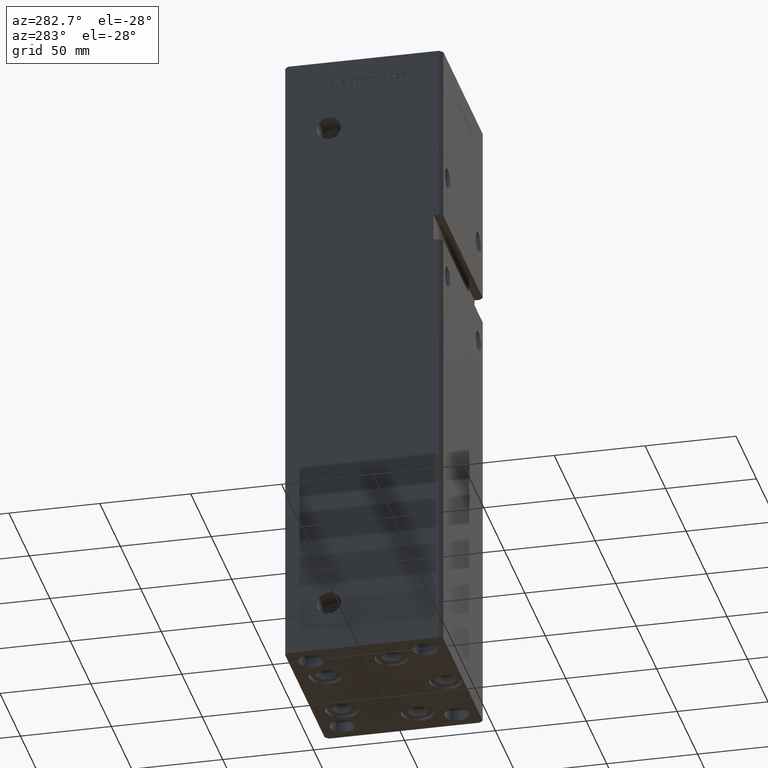
[diagram: clean part render]
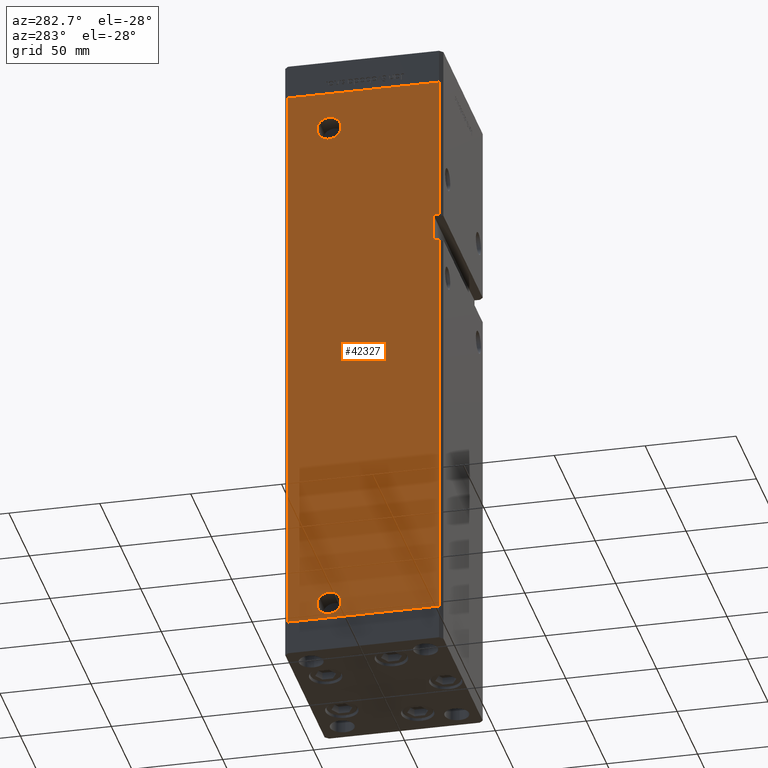
[diagram: same view with one face highlighted and labeled with its STEP entity id]
A machine part, auxiliary view. The second image highlights one B-rep face of the part: STEP entity #42327.
In plain terms, the highlighted planar face has unit normal (1, 0, 0).
Its self-contained STEP definition (entity closure, byte-faithful):
#18 = CIRCLE ( 'NONE', #27510, 6.580000000000002736 ) ;
#694 = EDGE_CURVE ( 'NONE', #40831, #34940, #27247, .T. ) ;
#1255 = CARTESIAN_POINT ( 'NONE',  ( -50.00000000000001421, 41.49999999999999289, 318.5000000000000000 ) ) ;
#2307 = EDGE_CURVE ( 'NONE', #35703, #48723, #43948, .T. ) ;
#2491 = CARTESIAN_POINT ( 'NONE',  ( -50.00000000000001421, 41.49999999999999289, 0.000000000000000000 ) ) ;
#3138 = EDGE_LOOP ( 'NONE', ( #28983, #45675 ) ) ;
#3141 = CARTESIAN_POINT ( 'NONE',  ( -50.00000000000001421, 41.49999999999999289, 318.5000000000000000 ) ) ;
#3309 = LINE ( 'NONE', #43883, #43074 ) ;
#3912 = VERTEX_POINT ( 'NONE', #1255 ) ;
#3988 = CARTESIAN_POINT ( 'NONE',  ( -49.99999999999998579, -38.50000000000000000, 223.0000000000000000 ) ) ;
#5367 = VERTEX_POINT ( 'NONE', #50105 ) ;
#6446 = DIRECTION ( 'NONE',  ( 1.000000000000000000, 3.344045254895050480E-16, -0.000000000000000000 ) ) ;
#6553 = DIRECTION ( 'NONE',  ( 0.000000000000000000, -1.000000000000000000, 0.000000000000000000 ) ) ;
#6886 = CARTESIAN_POINT ( 'NONE',  ( -49.99999999999998579, -41.49999999999999289, 318.5000000000000000 ) ) ;
#7918 = DIRECTION ( 'NONE',  ( -1.000000000000000000, -2.275047181608927644E-16, 0.000000000000000000 ) ) ;
#7943 = EDGE_CURVE ( 'NONE', #14810, #8219, #49701, .T. ) ;
#8200 = VECTOR ( 'NONE', #10691, 1000.000000000000000 ) ;
#8219 = VERTEX_POINT ( 'NONE', #16146 ) ;
#9601 = VECTOR ( 'NONE', #51942, 1000.000000000000000 ) ;
#10480 = CARTESIAN_POINT ( 'NONE',  ( -49.99999999999998579, -41.49999999999999289, 318.5000000000000000 ) ) ;
#10691 = DIRECTION ( 'NONE',  ( 3.344045254895050973E-16, -1.000000000000000000, 0.000000000000000000 ) ) ;
#11487 = DIRECTION ( 'NONE',  ( -1.000000000000000000, -2.275047181608927644E-16, 0.000000000000000000 ) ) ;
#13447 = ORIENTED_EDGE ( 'NONE', *, *, #47080, .F. ) ;
#13546 = EDGE_CURVE ( 'NONE', #8219, #14810, #30001, .T. ) ;
#14090 = VERTEX_POINT ( 'NONE', #49833 ) ;
#14388 = CARTESIAN_POINT ( 'NONE',  ( -49.99999999999998579, -41.49999999999999289, 223.0000000000000000 ) ) ;
#14742 = CARTESIAN_POINT ( 'NONE',  ( -50.00000000000001421, 41.49999999999999289, 318.5000000000000000 ) ) ;
#14810 = VERTEX_POINT ( 'NONE', #17999 ) ;
#15884 = EDGE_CURVE ( 'NONE', #35703, #34940, #3309, .T. ) ;
#16146 = CARTESIAN_POINT ( 'NONE',  ( -50.00000000000000711, 25.58000000000004448, 297.5000000000000000 ) ) ;
#16946 = ORIENTED_EDGE ( 'NONE', *, *, #48672, .F. ) ;
#17159 = ORIENTED_EDGE ( 'NONE', *, *, #45428, .T. ) ;
#17254 = ORIENTED_EDGE ( 'NONE', *, *, #33211, .F. ) ;
#17999 = CARTESIAN_POINT ( 'NONE',  ( -50.00000000000000711, 12.41999999999995552, 297.5000000000000000 ) ) ;
#18031 = CARTESIAN_POINT ( 'NONE',  ( -49.99999999999998579, -38.50000000000000000, 223.0000000000000000 ) ) ;
#18538 = AXIS2_PLACEMENT_3D ( 'NONE', #48221, #7918, #32657 ) ;
#19612 = LINE ( 'NONE', #3988, #41807 ) ;
#19785 = ORIENTED_EDGE ( 'NONE', *, *, #24738, .F. ) ;
#20076 = LINE ( 'NONE', #3141, #46422 ) ;
#20959 = CARTESIAN_POINT ( 'NONE',  ( -50.00000000000001421, 41.49999999999999289, 0.000000000000000000 ) ) ;
#21014 = DIRECTION ( 'NONE',  ( -1.000000000000000000, -2.275047181608927644E-16, 0.000000000000000000 ) ) ;
#21460 = AXIS2_PLACEMENT_3D ( 'NONE', #21827, #11487, #31394 ) ;
#21827 = CARTESIAN_POINT ( 'NONE',  ( -50.00000000000000711, 19.00000000000000000, 297.5000000000000000 ) ) ;
#22329 = FACE_BOUND ( 'NONE', #29134, .T. ) ;
#23221 = AXIS2_PLACEMENT_3D ( 'NONE', #23909, #6446, #43250 ) ;
#23230 = DIRECTION ( 'NONE',  ( -1.000000000000000000, -2.275047181608927644E-16, 0.000000000000000000 ) ) ;
#23490 = DIRECTION ( 'NONE',  ( -0.000000000000000000, -1.000000000000000000, -0.000000000000000000 ) ) ;
#23753 = CARTESIAN_POINT ( 'NONE',  ( -50.00000000000000711, 19.00000000000000000, 297.5000000000000000 ) ) ;
#23909 = CARTESIAN_POINT ( 'NONE',  ( -50.00000000000001421, 41.49999999999999289, 318.5000000000000000 ) ) ;
#24738 = EDGE_CURVE ( 'NONE', #3912, #40831, #48011, .T. ) ;
#25143 = EDGE_CURVE ( 'NONE', #14090, #5367, #27964, .T. ) ;
#25313 = DIRECTION ( 'NONE',  ( 0.000000000000000000, -1.000000000000000000, 0.000000000000000000 ) ) ;
#26239 = EDGE_LOOP ( 'NONE', ( #16946, #17254, #27025, #37117, #45465, #19785, #26708, #17159 ) ) ;
#26360 = FACE_OUTER_BOUND ( 'NONE', #26239, .T. ) ;
#26708 = ORIENTED_EDGE ( 'NONE', *, *, #44731, .T. ) ;
#27025 = ORIENTED_EDGE ( 'NONE', *, *, #2307, .F. ) ;
#27247 = LINE ( 'NONE', #43610, #9601 ) ;
#27510 = AXIS2_PLACEMENT_3D ( 'NONE', #36062, #21014, #25313 ) ;
#27964 = CIRCLE ( 'NONE', #18538, 6.580000000000002736 ) ;
#28640 = DIRECTION ( 'NONE',  ( 0.000000000000000000, 0.000000000000000000, -1.000000000000000000 ) ) ;
#28983 = ORIENTED_EDGE ( 'NONE', *, *, #7943, .F. ) ;
#29134 = EDGE_LOOP ( 'NONE', ( #32220, #13447 ) ) ;
#29262 = VECTOR ( 'NONE', #50521, 1000.000000000000000 ) ;
#30001 = CIRCLE ( 'NONE', #21460, 6.580000000000044480 ) ;
#31394 = DIRECTION ( 'NONE',  ( 0.000000000000000000, -1.000000000000000000, 0.000000000000000000 ) ) ;
#32220 = ORIENTED_EDGE ( 'NONE', *, *, #25143, .F. ) ;
#32657 = DIRECTION ( 'NONE',  ( 0.000000000000000000, -1.000000000000000000, 0.000000000000000000 ) ) ;
#32779 = LINE ( 'NONE', #20959, #38614 ) ;
#32964 = DIRECTION ( 'NONE',  ( -0.000000000000000000, -0.000000000000000000, -1.000000000000000000 ) ) ;
#33211 = EDGE_CURVE ( 'NONE', #48723, #47531, #19612, .T. ) ;
#34266 = AXIS2_PLACEMENT_3D ( 'NONE', #23753, #23230, #6553 ) ;
#34325 = CARTESIAN_POINT ( 'NONE',  ( -49.99999999999998579, -41.49999999999999289, 238.0000000000000284 ) ) ;
#34418 = LINE ( 'NONE', #10480, #29262 ) ;
#34940 = VERTEX_POINT ( 'NONE', #34325 ) ;
#35703 = VERTEX_POINT ( 'NONE', #50706 ) ;
#36062 = CARTESIAN_POINT ( 'NONE',  ( -50.00000000000000711, 19.00000000000000000, 9.000000000000007105 ) ) ;
#36169 = CARTESIAN_POINT ( 'NONE',  ( -49.99999999999998579, -38.50000000000000000, 238.0000000000000284 ) ) ;
#37117 = ORIENTED_EDGE ( 'NONE', *, *, #15884, .T. ) ;
#38614 = VECTOR ( 'NONE', #49674, 1000.000000000000000 ) ;
#38701 = FACE_BOUND ( 'NONE', #3138, .T. ) ;
#40078 = VECTOR ( 'NONE', #28640, 1000.000000000000000 ) ;
#40831 = VERTEX_POINT ( 'NONE', #6886 ) ;
#41807 = VECTOR ( 'NONE', #52374, 1000.000000000000000 ) ;
#42327 = ADVANCED_FACE ( 'NONE', ( #26360, #22329, #38701 ), #46995, .F. ) ;
#43074 = VECTOR ( 'NONE', #23490, 1000.000000000000000 ) ;
#43250 = DIRECTION ( 'NONE',  ( -3.344045254895050480E-16, 1.000000000000000000, 0.000000000000000000 ) ) ;
#43610 = CARTESIAN_POINT ( 'NONE',  ( -49.99999999999998579, -41.49999999999999289, 318.5000000000000000 ) ) ;
#43883 = CARTESIAN_POINT ( 'NONE',  ( -49.99999999999998579, -38.50000000000000000, 238.0000000000000284 ) ) ;
#43948 = LINE ( 'NONE', #36169, #40078 ) ;
#44731 = EDGE_CURVE ( 'NONE', #3912, #47787, #20076, .T. ) ;
#44837 = VERTEX_POINT ( 'NONE', #50398 ) ;
#45428 = EDGE_CURVE ( 'NONE', #47787, #44837, #32779, .T. ) ;
#45465 = ORIENTED_EDGE ( 'NONE', *, *, #694, .F. ) ;
#45675 = ORIENTED_EDGE ( 'NONE', *, *, #13546, .F. ) ;
#46422 = VECTOR ( 'NONE', #32964, 1000.000000000000000 ) ;
#46995 = PLANE ( 'NONE',  #23221 ) ;
#47080 = EDGE_CURVE ( 'NONE', #5367, #14090, #18, .T. ) ;
#47531 = VERTEX_POINT ( 'NONE', #14388 ) ;
#47787 = VERTEX_POINT ( 'NONE', #2491 ) ;
#48011 = LINE ( 'NONE', #14742, #8200 ) ;
#48221 = CARTESIAN_POINT ( 'NONE',  ( -50.00000000000000711, 19.00000000000000000, 9.000000000000007105 ) ) ;
#48672 = EDGE_CURVE ( 'NONE', #47531, #44837, #34418, .T. ) ;
#48723 = VERTEX_POINT ( 'NONE', #18031 ) ;
#49674 = DIRECTION ( 'NONE',  ( 3.344045254895050973E-16, -1.000000000000000000, 0.000000000000000000 ) ) ;
#49701 = CIRCLE ( 'NONE', #34266, 6.580000000000044480 ) ;
#49833 = CARTESIAN_POINT ( 'NONE',  ( -50.00000000000000711, 12.41999999999999638, 9.000000000000007105 ) ) ;
#50105 = CARTESIAN_POINT ( 'NONE',  ( -50.00000000000000711, 25.58000000000000185, 9.000000000000007105 ) ) ;
#50398 = CARTESIAN_POINT ( 'NONE',  ( -49.99999999999998579, -41.49999999999999289, 0.000000000000000000 ) ) ;
#50521 = DIRECTION ( 'NONE',  ( -0.000000000000000000, -0.000000000000000000, -1.000000000000000000 ) ) ;
#50706 = CARTESIAN_POINT ( 'NONE',  ( -49.99999999999998579, -38.50000000000000000, 238.0000000000000284 ) ) ;
#51942 = DIRECTION ( 'NONE',  ( -0.000000000000000000, -0.000000000000000000, -1.000000000000000000 ) ) ;
#52374 = DIRECTION ( 'NONE',  ( -0.000000000000000000, -1.000000000000000000, -0.000000000000000000 ) ) ;